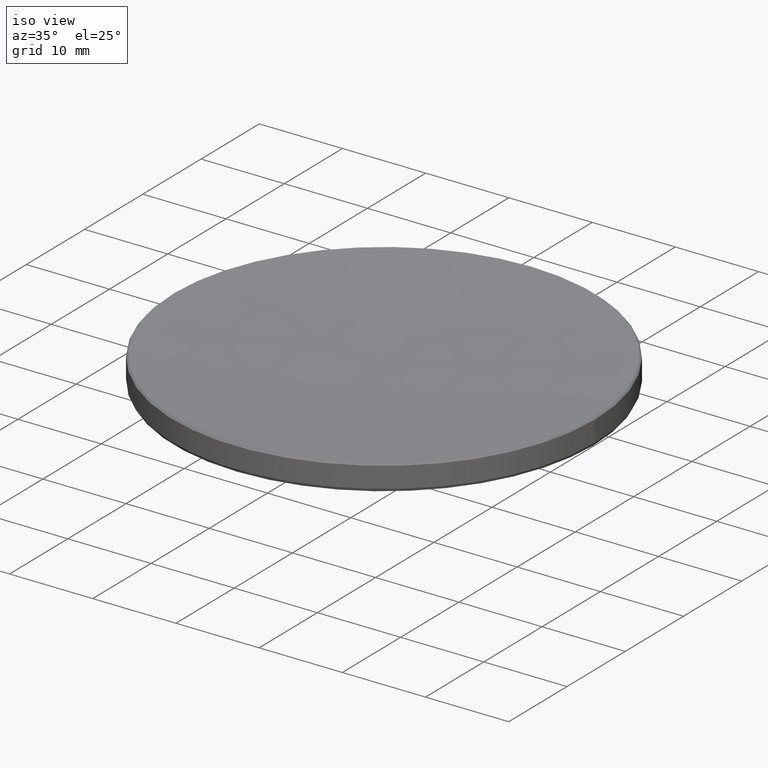
[diagram: clean part render]
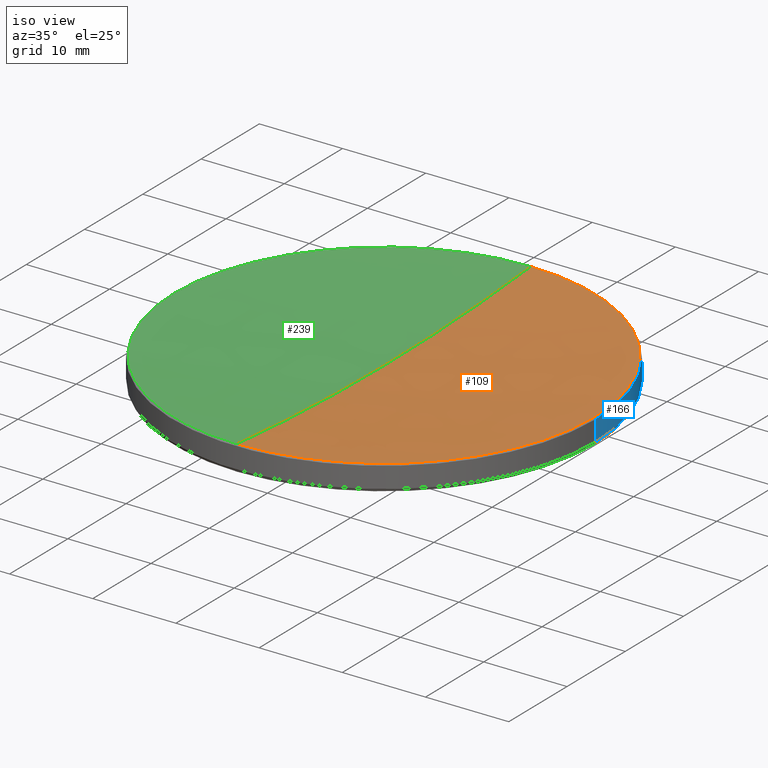
[diagram: same view with three faces highlighted in distinct colors, each labeled with its STEP entity id]
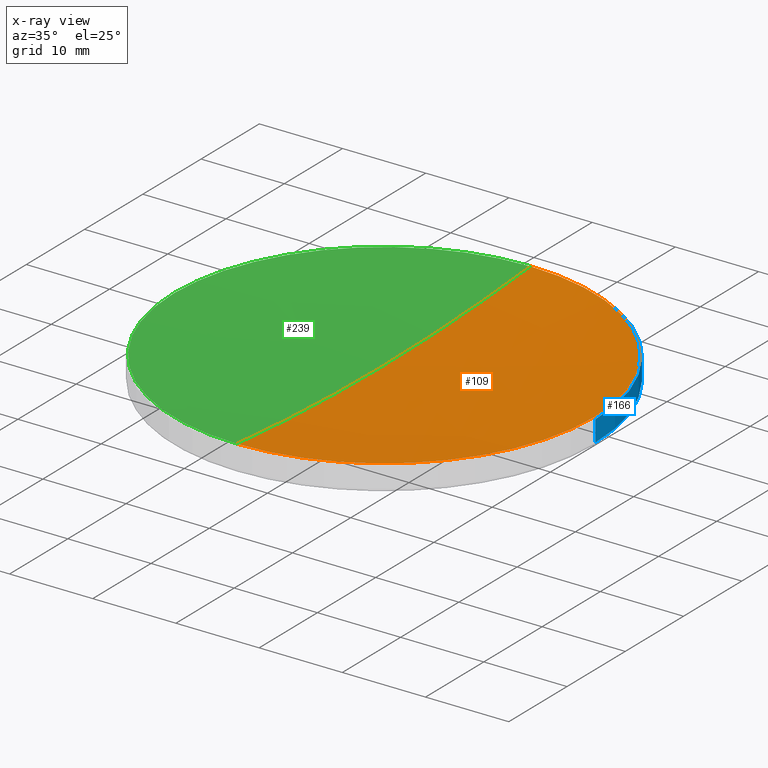
[diagram: x-ray of the same camera — body ghosted, the three highlighted faces saturated]
A machine part, iso view with three faces highlighted in distinct colors.
The next image is the same camera in x-ray (body ghosted, the three faces saturated) — at least one of them is partly hidden behind the body in this view.
Their STEP definitions:

[orange] entity #109 — the highlighted spherical surface has radius 279.12 mm.
#3 = EDGE_LOOP ( 'NONE', ( #27, #288, #5, #120 ) ) ;
#5 = ORIENTED_EDGE ( 'NONE', *, *, #77, .T. ) ;
#7 = DIRECTION ( 'NONE',  ( -0.000000000000000000, -0.000000000000000000, 1.000000000000000000 ) ) ;
#22 = CARTESIAN_POINT ( 'NONE',  ( 0.000000000000000000, 0.000000000000000000, 293.9618937912173351 ) ) ;
#27 = ORIENTED_EDGE ( 'NONE', *, *, #142, .F. ) ;
#33 = DIRECTION ( 'NONE',  ( 1.000000000000000000, 0.000000000000000000, 0.000000000000000000 ) ) ;
#36 = CARTESIAN_POINT ( 'NONE',  ( 0.000000000000000000, 0.000000000000000000, 15.98331016676862681 ) ) ;
#37 = DIRECTION ( 'NONE',  ( 0.000000000000000000, 0.000000000000000000, -1.000000000000000000 ) ) ;
#61 = CARTESIAN_POINT ( 'NONE',  ( 0.000000000000000000, 0.000000000000000000, 293.9618937912173351 ) ) ;
#63 = EDGE_CURVE ( 'NONE', #144, #253, #303, .T. ) ;
#67 = AXIS2_PLACEMENT_3D ( 'NONE', #263, #7, #33 ) ;
#77 = EDGE_CURVE ( 'NONE', #255, #144, #301, .T. ) ;
#92 = AXIS2_PLACEMENT_3D ( 'NONE', #61, #238, #37 ) ;
#100 = CIRCLE ( 'NONE', #92, 279.1200000000000614 ) ;
#101 = CARTESIAN_POINT ( 'NONE',  ( 0.000000000000000000, 1.709117072890046227E-14, 14.84189379121730923 ) ) ;
#109 = ADVANCED_FACE ( 'NONE', ( #260 ), #181, .F. ) ;
#120 = ORIENTED_EDGE ( 'NONE', *, *, #63, .T. ) ;
#130 = CARTESIAN_POINT ( 'NONE',  ( 0.000000000000000000, 25.21668983323133872, 15.98331016676862681 ) ) ;
#134 = DIRECTION ( 'NONE',  ( 0.000000000000000000, 1.000000000000000000, 0.000000000000000000 ) ) ;
#142 = EDGE_CURVE ( 'NONE', #310, #253, #100, .T. ) ;
#144 = VERTEX_POINT ( 'NONE', #165 ) ;
#156 = DIRECTION ( 'NONE',  ( 1.000000000000000000, 0.000000000000000000, 0.000000000000000000 ) ) ;
#165 = CARTESIAN_POINT ( 'NONE',  ( 25.21668983323140623, 3.099378359385061019E-15, 15.98331016676862681 ) ) ;
#181 = SPHERICAL_SURFACE ( 'NONE', #313, 279.1200000000000614 ) ;
#185 = CARTESIAN_POINT ( 'NONE',  ( 0.000000000000000000, 0.000000000000000000, 293.9618937912173351 ) ) ;
#227 = DIRECTION ( 'NONE',  ( -1.000000000000000000, 1.224646799147353207E-16, 0.000000000000000000 ) ) ;
#238 = DIRECTION ( 'NONE',  ( 1.000000000000000000, 0.000000000000000000, 0.000000000000000000 ) ) ;
#243 = AXIS2_PLACEMENT_3D ( 'NONE', #36, #312, #156 ) ;
#252 = CIRCLE ( 'NONE', #276, 279.1200000000000614 ) ;
#253 = VERTEX_POINT ( 'NONE', #130 ) ;
#255 = VERTEX_POINT ( 'NONE', #265 ) ;
#260 = FACE_OUTER_BOUND ( 'NONE', #3, .T. ) ;
#263 = CARTESIAN_POINT ( 'NONE',  ( 0.000000000000000000, 0.000000000000000000, 15.98331016676862681 ) ) ;
#265 = CARTESIAN_POINT ( 'NONE',  ( -3.088153848935836496E-15, -25.21668983323133872, 15.98331016676862681 ) ) ;
#276 = AXIS2_PLACEMENT_3D ( 'NONE', #22, #227, #327 ) ;
#288 = ORIENTED_EDGE ( 'NONE', *, *, #325, .T. ) ;
#301 = CIRCLE ( 'NONE', #67, 25.21668983323140623 ) ;
#303 = CIRCLE ( 'NONE', #243, 25.21668983323140623 ) ;
#310 = VERTEX_POINT ( 'NONE', #101 ) ;
#312 = DIRECTION ( 'NONE',  ( -0.000000000000000000, -0.000000000000000000, 1.000000000000000000 ) ) ;
#313 = AXIS2_PLACEMENT_3D ( 'NONE', #185, #319, #134 ) ;
#319 = DIRECTION ( 'NONE',  ( -1.000000000000000000, 0.000000000000000000, 0.000000000000000000 ) ) ;
#325 = EDGE_CURVE ( 'NONE', #310, #255, #252, .T. ) ;
#327 = DIRECTION ( 'NONE',  ( -1.224646799147352961E-16, -1.000000000000000000, 0.000000000000000000 ) ) ;

[blue] entity #166 — the highlighted cylindrical surface (partial cylindrical patch) has radius 25.4 mm, axis along (-0, -0, -1).
#4 = DIRECTION ( 'NONE',  ( -0.000000000000000000, -0.000000000000000000, -1.000000000000000000 ) ) ;
#14 = CARTESIAN_POINT ( 'NONE',  ( 0.000000000000000000, 0.000000000000000000, 20.00000000000000000 ) ) ;
#21 = VERTEX_POINT ( 'NONE', #266 ) ;
#23 = EDGE_LOOP ( 'NONE', ( #309, #148, #96, #281 ) ) ;
#32 = DIRECTION ( 'NONE',  ( 1.000000000000000000, 0.000000000000000000, 0.000000000000000000 ) ) ;
#39 = FACE_OUTER_BOUND ( 'NONE', #23, .T. ) ;
#40 = EDGE_CURVE ( 'NONE', #21, #71, #202, .T. ) ;
#44 = AXIS2_PLACEMENT_3D ( 'NONE', #230, #105, #254 ) ;
#52 = VERTEX_POINT ( 'NONE', #55 ) ;
#55 = CARTESIAN_POINT ( 'NONE',  ( 25.39999999999999858, 3.110602869834276865E-15, 15.79999999999998117 ) ) ;
#71 = VERTEX_POINT ( 'NONE', #80 ) ;
#76 = VERTEX_POINT ( 'NONE', #210 ) ;
#80 = CARTESIAN_POINT ( 'NONE',  ( -25.39999999999999858, 0.000000000000000000, 13.28032383718598375 ) ) ;
#85 = LINE ( 'NONE', #259, #278 ) ;
#90 = DIRECTION ( 'NONE',  ( -1.000000000000000000, 0.000000000000000000, 0.000000000000000000 ) ) ;
#96 = ORIENTED_EDGE ( 'NONE', *, *, #305, .T. ) ;
#104 = CARTESIAN_POINT ( 'NONE',  ( -25.39999999999999858, 0.000000000000000000, 20.00000000000000000 ) ) ;
#105 = DIRECTION ( 'NONE',  ( -0.000000000000000000, -0.000000000000000000, 1.000000000000000000 ) ) ;
#132 = CIRCLE ( 'NONE', #324, 25.39999999999999858 ) ;
#139 = DIRECTION ( 'NONE',  ( -0.000000000000000000, -0.000000000000000000, -1.000000000000000000 ) ) ;
#148 = ORIENTED_EDGE ( 'NONE', *, *, #292, .T. ) ;
#152 = DIRECTION ( 'NONE',  ( -0.000000000000000000, -0.000000000000000000, -1.000000000000000000 ) ) ;
#166 = ADVANCED_FACE ( 'NONE', ( #39 ), #322, .T. ) ;
#167 = CIRCLE ( 'NONE', #44, 25.39999999999999858 ) ;
#202 = LINE ( 'NONE', #104, #289 ) ;
#210 = CARTESIAN_POINT ( 'NONE',  ( 25.39999999999999858, 3.110602869834276865E-15, 13.28032383718598375 ) ) ;
#230 = CARTESIAN_POINT ( 'NONE',  ( 0.000000000000000000, 0.000000000000000000, 13.28032383718598375 ) ) ;
#234 = DIRECTION ( 'NONE',  ( 0.000000000000000000, 0.000000000000000000, -1.000000000000000000 ) ) ;
#248 = EDGE_CURVE ( 'NONE', #21, #52, #132, .T. ) ;
#254 = DIRECTION ( 'NONE',  ( -1.000000000000000000, 0.000000000000000000, 0.000000000000000000 ) ) ;
#259 = CARTESIAN_POINT ( 'NONE',  ( 25.39999999999999858, 3.110602869834276865E-15, 20.00000000000000000 ) ) ;
#261 = CARTESIAN_POINT ( 'NONE',  ( 0.000000000000000000, 0.000000000000000000, 15.79999999999998117 ) ) ;
#266 = CARTESIAN_POINT ( 'NONE',  ( -25.39999999999999858, 0.000000000000000000, 15.79999999999998117 ) ) ;
#277 = AXIS2_PLACEMENT_3D ( 'NONE', #14, #139, #90 ) ;
#278 = VECTOR ( 'NONE', #4, 1000.000000000000000 ) ;
#281 = ORIENTED_EDGE ( 'NONE', *, *, #40, .F. ) ;
#289 = VECTOR ( 'NONE', #152, 1000.000000000000000 ) ;
#292 = EDGE_CURVE ( 'NONE', #52, #76, #85, .T. ) ;
#305 = EDGE_CURVE ( 'NONE', #76, #71, #167, .T. ) ;
#309 = ORIENTED_EDGE ( 'NONE', *, *, #248, .T. ) ;
#322 = CYLINDRICAL_SURFACE ( 'NONE', #277, 25.39999999999999858 ) ;
#324 = AXIS2_PLACEMENT_3D ( 'NONE', #261, #234, #32 ) ;

[green] entity #239 — the highlighted spherical surface has radius 279.12 mm.
#22 = CARTESIAN_POINT ( 'NONE',  ( 0.000000000000000000, 0.000000000000000000, 293.9618937912173351 ) ) ;
#37 = DIRECTION ( 'NONE',  ( 0.000000000000000000, 0.000000000000000000, -1.000000000000000000 ) ) ;
#38 = CIRCLE ( 'NONE', #215, 25.21668983323140623 ) ;
#50 = EDGE_CURVE ( 'NONE', #253, #218, #38, .T. ) ;
#59 = CARTESIAN_POINT ( 'NONE',  ( -25.21668983323140623, 0.000000000000000000, 15.98331016676862681 ) ) ;
#61 = CARTESIAN_POINT ( 'NONE',  ( 0.000000000000000000, 0.000000000000000000, 293.9618937912173351 ) ) ;
#74 = CIRCLE ( 'NONE', #267, 25.21668983323140623 ) ;
#82 = CARTESIAN_POINT ( 'NONE',  ( 0.000000000000000000, 0.000000000000000000, 293.9618937912173351 ) ) ;
#92 = AXIS2_PLACEMENT_3D ( 'NONE', #61, #238, #37 ) ;
#94 = EDGE_LOOP ( 'NONE', ( #102, #247, #246, #190 ) ) ;
#100 = CIRCLE ( 'NONE', #92, 279.1200000000000614 ) ;
#101 = CARTESIAN_POINT ( 'NONE',  ( 0.000000000000000000, 1.709117072890046227E-14, 14.84189379121730923 ) ) ;
#102 = ORIENTED_EDGE ( 'NONE', *, *, #325, .F. ) ;
#103 = DIRECTION ( 'NONE',  ( 0.000000000000000000, 1.000000000000000000, 0.000000000000000000 ) ) ;
#128 = DIRECTION ( 'NONE',  ( 1.000000000000000000, 0.000000000000000000, 0.000000000000000000 ) ) ;
#130 = CARTESIAN_POINT ( 'NONE',  ( 0.000000000000000000, 25.21668983323133872, 15.98331016676862681 ) ) ;
#133 = SPHERICAL_SURFACE ( 'NONE', #257, 279.1200000000000614 ) ;
#142 = EDGE_CURVE ( 'NONE', #310, #253, #100, .T. ) ;
#155 = DIRECTION ( 'NONE',  ( -1.000000000000000000, 0.000000000000000000, 0.000000000000000000 ) ) ;
#160 = DIRECTION ( 'NONE',  ( 1.000000000000000000, 0.000000000000000000, 0.000000000000000000 ) ) ;
#178 = DIRECTION ( 'NONE',  ( -0.000000000000000000, -0.000000000000000000, 1.000000000000000000 ) ) ;
#190 = ORIENTED_EDGE ( 'NONE', *, *, #264, .T. ) ;
#215 = AXIS2_PLACEMENT_3D ( 'NONE', #314, #178, #128 ) ;
#218 = VERTEX_POINT ( 'NONE', #59 ) ;
#227 = DIRECTION ( 'NONE',  ( -1.000000000000000000, 1.224646799147353207E-16, 0.000000000000000000 ) ) ;
#232 = CARTESIAN_POINT ( 'NONE',  ( 0.000000000000000000, 0.000000000000000000, 15.98331016676862681 ) ) ;
#238 = DIRECTION ( 'NONE',  ( 1.000000000000000000, 0.000000000000000000, 0.000000000000000000 ) ) ;
#239 = ADVANCED_FACE ( 'NONE', ( #291 ), #133, .F. ) ;
#246 = ORIENTED_EDGE ( 'NONE', *, *, #50, .T. ) ;
#247 = ORIENTED_EDGE ( 'NONE', *, *, #142, .T. ) ;
#252 = CIRCLE ( 'NONE', #276, 279.1200000000000614 ) ;
#253 = VERTEX_POINT ( 'NONE', #130 ) ;
#255 = VERTEX_POINT ( 'NONE', #265 ) ;
#257 = AXIS2_PLACEMENT_3D ( 'NONE', #82, #155, #103 ) ;
#264 = EDGE_CURVE ( 'NONE', #218, #255, #74, .T. ) ;
#265 = CARTESIAN_POINT ( 'NONE',  ( -3.088153848935836496E-15, -25.21668983323133872, 15.98331016676862681 ) ) ;
#267 = AXIS2_PLACEMENT_3D ( 'NONE', #232, #317, #160 ) ;
#276 = AXIS2_PLACEMENT_3D ( 'NONE', #22, #227, #327 ) ;
#291 = FACE_OUTER_BOUND ( 'NONE', #94, .T. ) ;
#310 = VERTEX_POINT ( 'NONE', #101 ) ;
#314 = CARTESIAN_POINT ( 'NONE',  ( 0.000000000000000000, 0.000000000000000000, 15.98331016676862681 ) ) ;
#317 = DIRECTION ( 'NONE',  ( -0.000000000000000000, -0.000000000000000000, 1.000000000000000000 ) ) ;
#325 = EDGE_CURVE ( 'NONE', #310, #255, #252, .T. ) ;
#327 = DIRECTION ( 'NONE',  ( -1.224646799147352961E-16, -1.000000000000000000, 0.000000000000000000 ) ) ;